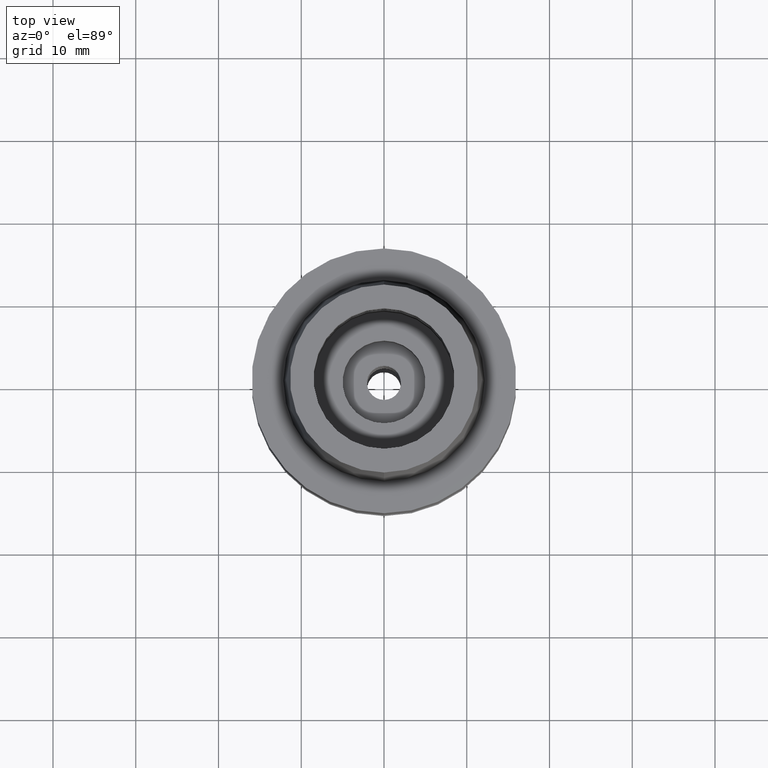
[diagram: clean part render]
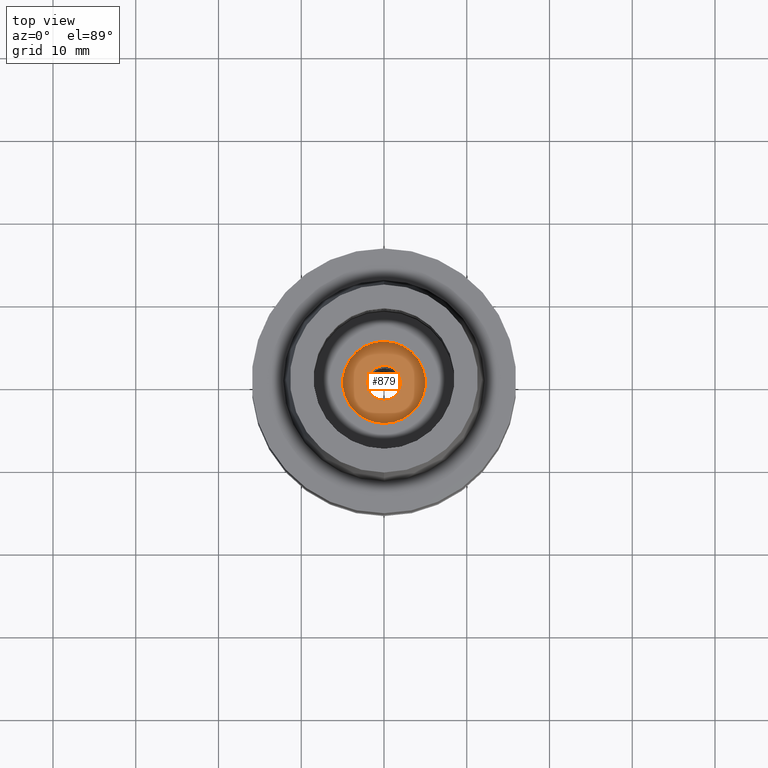
[diagram: same view with one face highlighted and labeled with its STEP entity id]
A machine part, top view. The second image highlights one B-rep face of the part: STEP entity #879.
In plain terms, the highlighted planar face has unit normal (0, 0, 1).
Its self-contained STEP definition (entity closure, byte-faithful):
#148 = CARTESIAN_POINT ( 'NONE',  ( 0.0000000000000000000, 5.000000000000000000, -13.95000000000000107 ) ) ;
#283 = VERTEX_POINT ( 'NONE', #965 ) ;
#320 = CARTESIAN_POINT ( 'NONE',  ( 0.0000000000000000000, 0.0000000000000000000, -13.95000000000000107 ) ) ;
#540 = AXIS2_PLACEMENT_3D ( 'NONE', #565, #669, #1528 ) ;
#565 = CARTESIAN_POINT ( 'NONE',  ( 0.0000000000000000000, 0.0000000000000000000, -13.95000000000000107 ) ) ;
#581 = EDGE_LOOP ( 'NONE', ( #1298, #1377 ) ) ;
#625 = AXIS2_PLACEMENT_3D ( 'NONE', #882, #1724, #1125 ) ;
#669 = DIRECTION ( 'NONE',  ( 0.0000000000000000000, 0.0000000000000000000, -1.000000000000000000 ) ) ;
#690 = ORIENTED_EDGE ( 'NONE', *, *, #1277, .F. ) ;
#697 = CARTESIAN_POINT ( 'NONE',  ( 0.0000000000000000000, 0.0000000000000000000, -13.95000000000000107 ) ) ;
#870 = PLANE ( 'NONE',  #1919 ) ;
#879 = ADVANCED_FACE ( 'NONE', ( #1723, #2311 ), #870, .T. ) ;
#882 = CARTESIAN_POINT ( 'NONE',  ( 0.0000000000000000000, 0.0000000000000000000, -13.95000000000000107 ) ) ;
#909 = DIRECTION ( 'NONE',  ( 0.0000000000000000000, 0.0000000000000000000, 1.000000000000000000 ) ) ;
#934 = CARTESIAN_POINT ( 'NONE',  ( 0.0000000000000000000, 0.0000000000000000000, -13.95000000000000107 ) ) ;
#965 = CARTESIAN_POINT ( 'NONE',  ( 0.0000000000000000000, 2.100000000000000089, -13.95000000000000107 ) ) ;
#1010 = EDGE_CURVE ( 'NONE', #283, #1208, #2524, .T. ) ;
#1125 = DIRECTION ( 'NONE',  ( 0.0000000000000000000, -1.000000000000000000, 0.0000000000000000000 ) ) ;
#1146 = DIRECTION ( 'NONE',  ( 0.0000000000000000000, 1.000000000000000000, 0.0000000000000000000 ) ) ;
#1159 = DIRECTION ( 'NONE',  ( 0.0000000000000000000, 0.0000000000000000000, 1.000000000000000000 ) ) ;
#1167 = CIRCLE ( 'NONE', #2471, 5.000000000000000000 ) ;
#1208 = VERTEX_POINT ( 'NONE', #2399 ) ;
#1277 = EDGE_CURVE ( 'NONE', #2595, #1310, #1167, .T. ) ;
#1298 = ORIENTED_EDGE ( 'NONE', *, *, #1010, .F. ) ;
#1310 = VERTEX_POINT ( 'NONE', #148 ) ;
#1327 = CIRCLE ( 'NONE', #625, 2.100000000000000089 ) ;
#1377 = ORIENTED_EDGE ( 'NONE', *, *, #1907, .F. ) ;
#1433 = AXIS2_PLACEMENT_3D ( 'NONE', #934, #1159, #1146 ) ;
#1498 = ORIENTED_EDGE ( 'NONE', *, *, #1702, .F. ) ;
#1528 = DIRECTION ( 'NONE',  ( 0.0000000000000000000, 1.000000000000000000, 0.0000000000000000000 ) ) ;
#1591 = DIRECTION ( 'NONE',  ( 0.0000000000000000000, 0.0000000000000000000, -1.000000000000000000 ) ) ;
#1619 = DIRECTION ( 'NONE',  ( 0.0000000000000000000, -1.000000000000000000, 0.0000000000000000000 ) ) ;
#1702 = EDGE_CURVE ( 'NONE', #1310, #2595, #2588, .T. ) ;
#1723 = FACE_OUTER_BOUND ( 'NONE', #1728, .T. ) ;
#1724 = DIRECTION ( 'NONE',  ( 0.0000000000000000000, 0.0000000000000000000, 1.000000000000000000 ) ) ;
#1728 = EDGE_LOOP ( 'NONE', ( #1498, #690 ) ) ;
#1907 = EDGE_CURVE ( 'NONE', #1208, #283, #1327, .T. ) ;
#1919 = AXIS2_PLACEMENT_3D ( 'NONE', #697, #909, #2321 ) ;
#2269 = CARTESIAN_POINT ( 'NONE',  ( 0.0000000000000000000, -5.000000000000000000, -13.95000000000000107 ) ) ;
#2311 = FACE_BOUND ( 'NONE', #581, .T. ) ;
#2321 = DIRECTION ( 'NONE',  ( 1.000000000000000000, 0.0000000000000000000, 0.0000000000000000000 ) ) ;
#2399 = CARTESIAN_POINT ( 'NONE',  ( 0.0000000000000000000, -2.100000000000000089, -13.95000000000000107 ) ) ;
#2471 = AXIS2_PLACEMENT_3D ( 'NONE', #320, #1591, #1619 ) ;
#2524 = CIRCLE ( 'NONE', #1433, 2.100000000000000089 ) ;
#2588 = CIRCLE ( 'NONE', #540, 5.000000000000000000 ) ;
#2595 = VERTEX_POINT ( 'NONE', #2269 ) ;